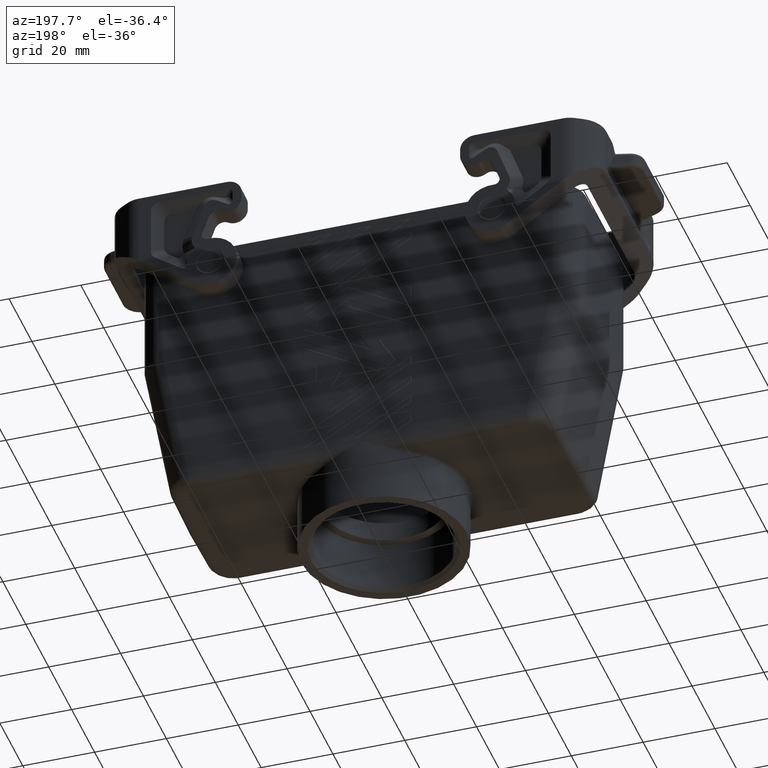
[diagram: clean part render]
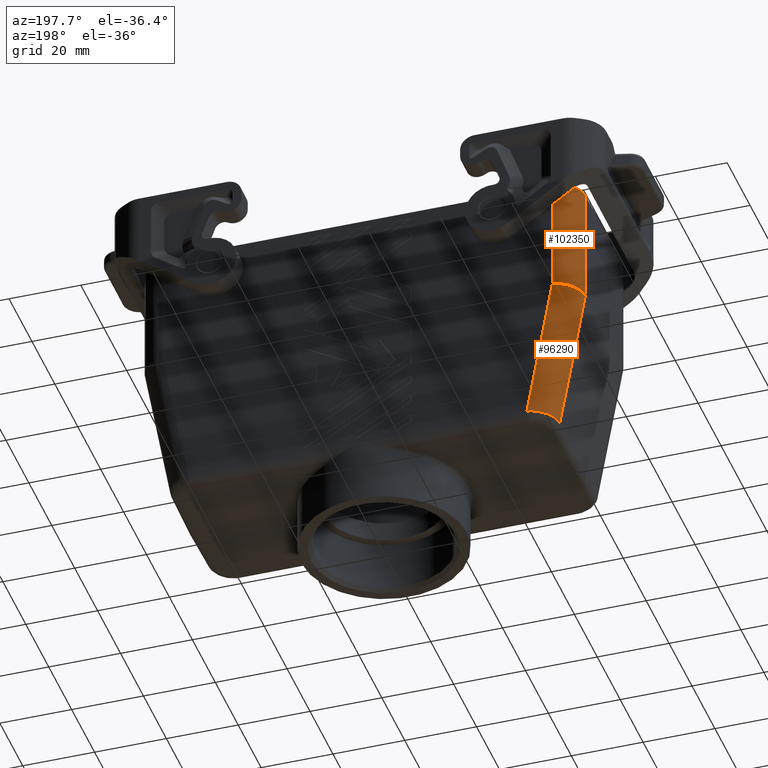
[diagram: same view with one multi-face feature highlighted, each face labeled with its STEP entity id]
A machine part, auxiliary view. The highlighted faces form ONE feature: a constant-radius fillet chain: 2 tangent blend faces with common blend radius 7 mm. The faces share edges in the B-rep.
Their STEP definitions:
[1] entity #96290 (Cylinder):
#6460=CARTESIAN_POINT('',(51.4731506472802,55.9634451416427,-23.));
#6470=VERTEX_POINT('',#6460);
#6500=CARTESIAN_POINT('',(51.5002275831828,55.8098842073269,-23.));
#6510=DIRECTION('',(-0.17364817766693,0.984807753012208,0.));
#6520=VECTOR('',#6510,1.);
#6530=LINE('',#6500,#6520);
#6540=CARTESIAN_POINT('',(44.3693968827781,96.2508347173039,-23.));
#6550=VERTEX_POINT('',#6540);
#6560=EDGE_CURVE('',#6470,#6550,#6530,.T.);
#89160=CARTESIAN_POINT('',(56.3604360478011,68.551526063926,
-16.122166845061));
#89170=DIRECTION('',(-0.17364817766693,0.984807753012208,
-1.2098363701056E-16));
#89180=VECTOR('',#89170,1.);
#89190=LINE('',#89160,#89180);
#89200=CARTESIAN_POINT('',(58.4720845133749,56.5757725116937,
-16.122166845061));
#89210=VERTEX_POINT('',#89200);
#89220=CARTESIAN_POINT('',(51.3723616632217,96.8403016360919,
-16.122166845061));
#89230=VERTEX_POINT('',#89220);
#89240=EDGE_CURVE('',#89210,#89230,#89190,.T.);
#96010=CARTESIAN_POINT('',(51.5002275831828,55.8098842073269,-16.));
#96020=DIRECTION('',(-0.17364817766693,0.984807753012208,0.));
#96030=DIRECTION('',(0.984807753012208,0.17364817766693,0.));
#96040=AXIS2_PLACEMENT_3D('',#96010,#96020,#96030);
#96050=CYLINDRICAL_SURFACE('',#96040,7.);
#96060=CARTESIAN_POINT('',(51.4731506472802,55.9634451416428,-16.));
#96070=DIRECTION('',(-0.0871557427476581,0.996194698091746,0.));
#96080=DIRECTION('',(0.996194698091746,0.0871557427476577,0.));
#96090=AXIS2_PLACEMENT_3D('',#96060,#96070,#96080);
#96100=ELLIPSE('',#96090,7.02673886280343,7.);
#96110=EDGE_CURVE('',#89210,#6470,#96100,.T.);
#96120=ORIENTED_EDGE('',*,*,#96110,.T.);
#96130=ORIENTED_EDGE('',*,*,#89240,.F.);
#96140=CARTESIAN_POINT('',(51.3723616632217,96.8403016360919,
-16.122166845061));
#96150=CARTESIAN_POINT('',(51.3558480811837,96.8732423303058,
-16.7261526877415));
#96160=CARTESIAN_POINT('',(51.1996262543132,96.9174011757976,
-17.931942075704));
#96170=CARTESIAN_POINT('',(50.5965631539195,96.9186223329769,
-19.6854944889818));
#96180=CARTESIAN_POINT('',(49.4676403484637,96.8271202360239,
-21.2110256272062));
#96190=CARTESIAN_POINT('',(47.9277394538536,96.6631516135544,
-22.311890793275));
#96200=CARTESIAN_POINT('',(46.1724931581996,96.4612117866428,
-22.8748858272061));
#96210=CARTESIAN_POINT('',(44.9704285654995,96.320960334953,-23.));
#96220=CARTESIAN_POINT('',(44.3693968827781,96.2508347173039,-23.));
#96230=B_SPLINE_CURVE_WITH_KNOTS('',6,(#96140,#96150,#96160,#96170,
#96180,#96190,#96200,#96210,#96220),.UNSPECIFIED.,.F.,.F.,(7,1,1,7),(0.,
0.333333333333333,0.666666666666667,1.),.UNSPECIFIED.);
#96240=EDGE_CURVE('',#89230,#6550,#96230,.T.);
#96250=ORIENTED_EDGE('',*,*,#96240,.F.);
#96260=ORIENTED_EDGE('',*,*,#6560,.T.);
#96270=EDGE_LOOP('',(#96260,#96250,#96130,#96120));
#96280=FACE_OUTER_BOUND('',#96270,.T.);
#96290=ADVANCED_FACE('',(#96280),#96050,.T.);
[2] entity #102350 (Cylinder):
#6400=CARTESIAN_POINT('',(51.4731506472802,55.8098842073269,-23.));
#6410=DIRECTION('',(1.2460230885406E-16,1.,0.));
#6420=VECTOR('',#6410,1.);
#6430=LINE('',#6400,#6420);
#6440=CARTESIAN_POINT('',(51.4731506472802,23.6003929999999,-23.));
#6450=VERTEX_POINT('',#6440);
#6460=CARTESIAN_POINT('',(51.4731506472802,55.9634451416427,-23.));
#6470=VERTEX_POINT('',#6460);
#6480=EDGE_CURVE('',#6450,#6470,#6430,.T.);
#89200=CARTESIAN_POINT('',(58.4720845133749,56.5757725116937,
-16.122166845061));
#89210=VERTEX_POINT('',#89200);
#96060=CARTESIAN_POINT('',(51.4731506472802,55.9634451416428,-16.));
#96070=DIRECTION('',(-0.0871557427476581,0.996194698091746,0.));
#96080=DIRECTION('',(0.996194698091746,0.0871557427476577,0.));
#96090=AXIS2_PLACEMENT_3D('',#96060,#96070,#96080);
#96100=ELLIPSE('',#96090,7.02673886280343,7.);
#96110=EDGE_CURVE('',#89210,#6470,#96100,.T.);
#102110=CARTESIAN_POINT('',(51.4731506472802,55.8098842073269,-16.));
#102120=DIRECTION('',(1.2460230885406E-16,1.,0.));
#102130=DIRECTION('',(1.,-1.2460230885406E-16,0.));
#102140=AXIS2_PLACEMENT_3D('',#102110,#102120,#102130);
#102150=CYLINDRICAL_SURFACE('',#102140,7.);
#102160=CARTESIAN_POINT('',(51.4731506472802,23.6003929999999,-16.));
#102170=DIRECTION('',(1.2460230885406E-16,1.,0.));
#102180=DIRECTION('',(1.,-1.2460230885406E-16,0.));
#102190=AXIS2_PLACEMENT_3D('',#102160,#102170,#102180);
#102200=CIRCLE('',#102190,7.);
#102210=CARTESIAN_POINT('',(58.4720845133749,23.6003929999999,
-16.122166845061));
#102220=VERTEX_POINT('',#102210);
#102230=EDGE_CURVE('',#102220,#6450,#102200,.T.);
#102240=ORIENTED_EDGE('',*,*,#102230,.T.);
#102250=CARTESIAN_POINT('',(58.4720845133749,55.8098842073269,
-16.122166845061));
#102260=DIRECTION('',(1.2460230885406E-16,1.,0.));
#102270=VECTOR('',#102260,1.);
#102280=LINE('',#102250,#102270);
#102290=EDGE_CURVE('',#102220,#89210,#102280,.T.);
#102300=ORIENTED_EDGE('',*,*,#102290,.F.);
#102310=ORIENTED_EDGE('',*,*,#96110,.F.);
#102320=ORIENTED_EDGE('',*,*,#6480,.T.);
#102330=EDGE_LOOP('',(#102320,#102310,#102300,#102240));
#102340=FACE_OUTER_BOUND('',#102330,.T.);
#102350=ADVANCED_FACE('',(#102340),#102150,.T.);